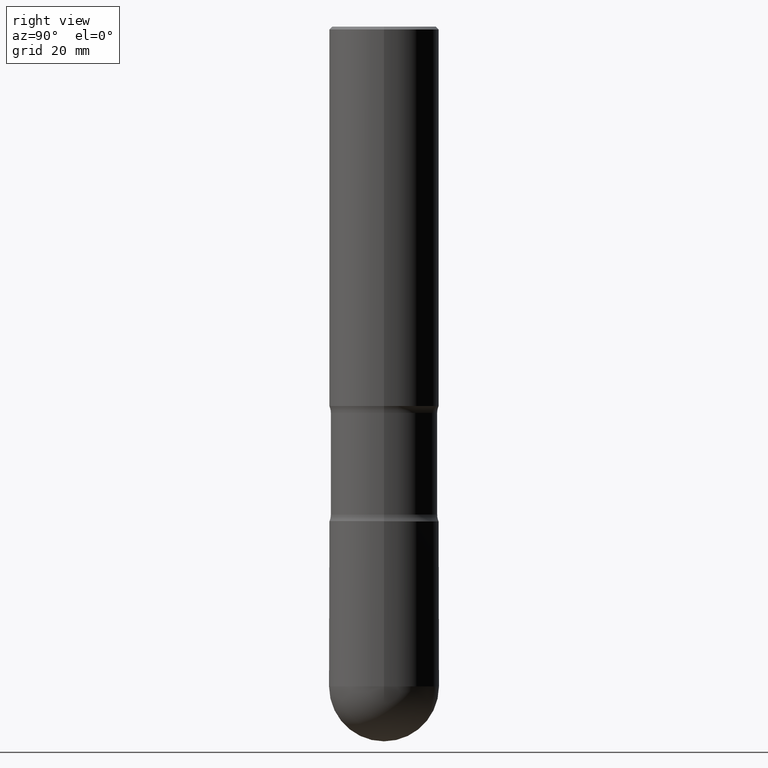
[diagram: clean part render]
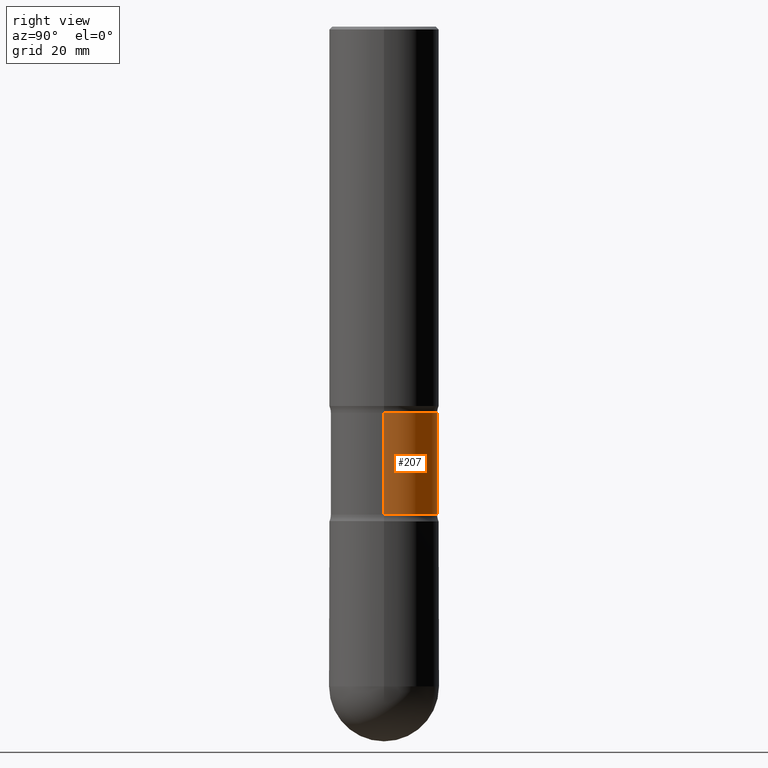
[diagram: same view with one face highlighted and labeled with its STEP entity id]
A machine part, right view. The second image highlights one B-rep face of the part: STEP entity #207.
In plain terms, the highlighted cylindrical surface (partial cylindrical patch) has radius 9.7409 mm, axis along (0, -0, -1).
Its self-contained STEP definition (entity closure, byte-faithful):
#9 = AXIS2_PLACEMENT_3D ( 'NONE', #313, #453, #484 ) ;
#15 = VECTOR ( 'NONE', #81, 39.37007874015748143 ) ;
#38 = CARTESIAN_POINT ( 'NONE',  ( -0.3834999999999994524, -9.693399641030237513E-15, -3.543300000000000338 ) ) ;
#48 = ORIENTED_EDGE ( 'NONE', *, *, #114, .T. ) ;
#70 = DIRECTION ( 'NONE',  ( 2.445468806185136877E-29, -3.491481338843145188E-15, -1.000000000000000000 ) ) ;
#81 = DIRECTION ( 'NONE',  ( 2.445468806185136877E-29, -3.491481338843145188E-15, -1.000000000000000000 ) ) ;
#87 = CARTESIAN_POINT ( 'NONE',  ( 8.665029620955795190E-29, -1.237136582792291865E-14, -3.543300000000000338 ) ) ;
#105 = ORIENTED_EDGE ( 'NONE', *, *, #344, .F. ) ;
#114 = EDGE_CURVE ( 'NONE', #356, #355, #292, .T. ) ;
#128 = VECTOR ( 'NONE', #70, 39.37007874015748143 ) ;
#132 = CYLINDRICAL_SURFACE ( 'NONE', #380, 0.3834999999999994524 ) ;
#189 = CARTESIAN_POINT ( 'NONE',  ( 0.3834999999999994524, -1.223693706013417670E-14, -2.765956647682592084 ) ) ;
#202 = ORIENTED_EDGE ( 'NONE', *, *, #554, .T. ) ;
#203 = VERTEX_POINT ( 'NONE', #302 ) ;
#207 = ADVANCED_FACE ( 'NONE', ( #251 ), #132, .T. ) ;
#218 = CARTESIAN_POINT ( 'NONE',  ( -0.3834999999999995635, -9.520722678564731608E-15, -3.493843352317408613 ) ) ;
#219 = CIRCLE ( 'NONE', #404, 0.3834999999999995635 ) ;
#222 = DIRECTION ( 'NONE',  ( -1.000000000000000000, 6.982962677686265922E-15, 0.000000000000000000 ) ) ;
#226 = VERTEX_POINT ( 'NONE', #218 ) ;
#251 = FACE_OUTER_BOUND ( 'NONE', #562, .T. ) ;
#255 = DIRECTION ( 'NONE',  ( 2.445468806185136597E-29, -3.491481338843145583E-15, -1.000000000000000000 ) ) ;
#292 = CIRCLE ( 'NONE', #9, 0.3834999999999994524 ) ;
#295 = EDGE_CURVE ( 'NONE', #356, #226, #431, .T. ) ;
#302 = CARTESIAN_POINT ( 'NONE',  ( 0.3834999999999995635, -1.355898842459054111E-14, -3.493843352317408613 ) ) ;
#313 = CARTESIAN_POINT ( 'NONE',  ( 6.764060701168190302E-29, -9.657286019432915814E-15, -2.765956647682592084 ) ) ;
#344 = EDGE_CURVE ( 'NONE', #226, #203, #219, .T. ) ;
#355 = VERTEX_POINT ( 'NONE', #189 ) ;
#356 = VERTEX_POINT ( 'NONE', #543 ) ;
#368 = DIRECTION ( 'NONE',  ( 2.445468806185136597E-29, -3.491481338843145583E-15, -1.000000000000000000 ) ) ;
#373 = CARTESIAN_POINT ( 'NONE',  ( 0.3834999999999994524, -1.500236681006829705E-14, -3.543300000000000338 ) ) ;
#380 = AXIS2_PLACEMENT_3D ( 'NONE', #87, #255, #392 ) ;
#392 = DIRECTION ( 'NONE',  ( -1.000000000000000000, 6.982962677686268288E-15, 0.000000000000000000 ) ) ;
#404 = AXIS2_PLACEMENT_3D ( 'NONE', #405, #368, #222 ) ;
#405 = CARTESIAN_POINT ( 'NONE',  ( 8.544084931789529647E-29, -1.219868886545741117E-14, -3.493843352317408613 ) ) ;
#431 = LINE ( 'NONE', #38, #15 ) ;
#453 = DIRECTION ( 'NONE',  ( 2.445468806185136597E-29, -3.491481338843145583E-15, -1.000000000000000000 ) ) ;
#469 = ORIENTED_EDGE ( 'NONE', *, *, #295, .F. ) ;
#484 = DIRECTION ( 'NONE',  ( -1.000000000000000000, 6.982962677686268288E-15, 0.000000000000000000 ) ) ;
#543 = CARTESIAN_POINT ( 'NONE',  ( -0.3834999999999994524, -6.979319832540235465E-15, -2.765956647682592084 ) ) ;
#554 = EDGE_CURVE ( 'NONE', #355, #203, #559, .T. ) ;
#559 = LINE ( 'NONE', #373, #128 ) ;
#562 = EDGE_LOOP ( 'NONE', ( #48, #202, #105, #469 ) ) ;